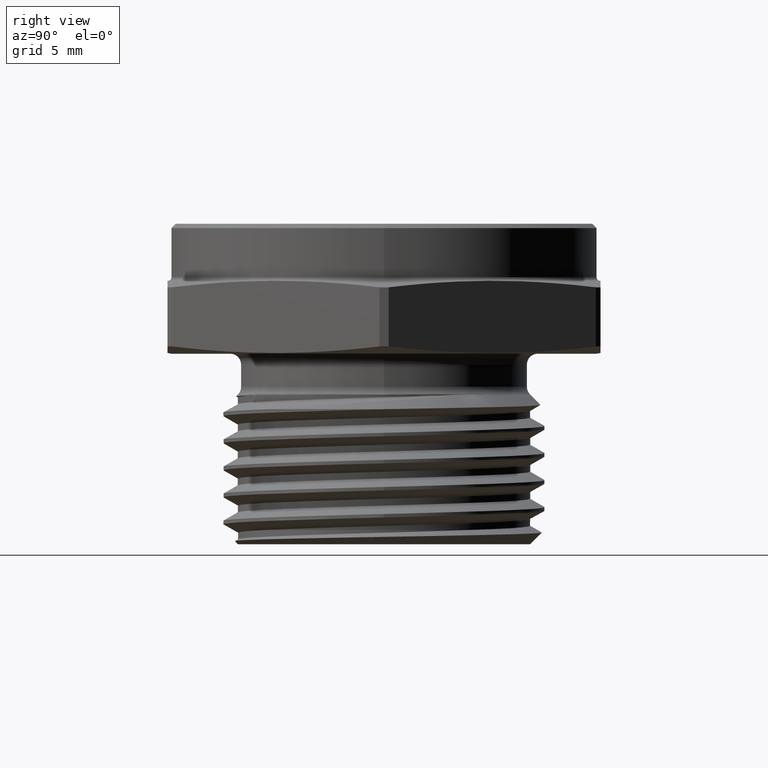
[diagram: clean part render]
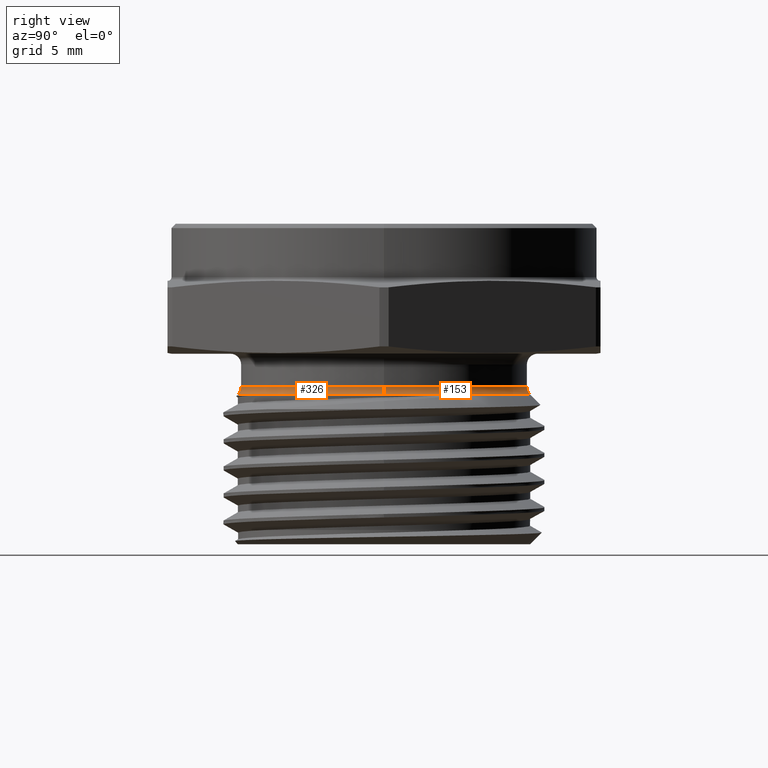
[diagram: same view with one multi-face feature highlighted, each face labeled with its STEP entity id]
A machine part, right view. The highlighted faces form ONE feature: a constant-radius fillet chain: 2 tangent blend faces with common blend radius 0.635 mm. The faces share edges in the B-rep.
Their STEP definitions:
[1] entity #326 (Torus):
#30 = EDGE_LOOP ( 'NONE', ( #2570, #2571, #2572, #2573 ) ) ;
#223 = AXIS2_PLACEMENT_3D ( 'NONE', #1267, #1266, #1269 ) ;
#250 = AXIS2_PLACEMENT_3D ( 'NONE', #444, #445, #446 ) ;
#251 = AXIS2_PLACEMENT_3D ( 'NONE', #448, #449, #450 ) ;
#252 = AXIS2_PLACEMENT_3D ( 'NONE', #451, #452, #453 ) ;
#253 = AXIS2_PLACEMENT_3D ( 'NONE', #455, #456, #457 ) ;
#326 = ADVANCED_FACE ( 'NONE', ( #2140 ), #2143, .F. ) ;
#444 = CARTESIAN_POINT ( 'NONE',  ( 0.0000000000000000000, 0.0000000000000000000, -0.07632233047033618000 ) ) ;
#445 = DIRECTION ( 'NONE',  ( -0.0000000000000000000, -0.0000000000000000000, 1.000000000000000000 ) ) ;
#446 = DIRECTION ( 'NONE',  ( 1.000000000000000000, 0.0000000000000000000, 0.0000000000000000000 ) ) ;
#448 = CARTESIAN_POINT ( 'NONE',  ( -0.3550000000000000400, 4.347496136973104100E-017, -0.07632233047033618000 ) ) ;
#449 = DIRECTION ( 'NONE',  ( 1.224646799147353200E-016, 1.000000000000000000, 0.0000000000000000000 ) ) ;
#450 = DIRECTION ( 'NONE',  ( -1.000000000000000000, 1.224646799147351200E-016, 0.0000000000000000000 ) ) ;
#451 = CARTESIAN_POINT ( 'NONE',  ( 0.0000000000000000000, 0.0000000000000000000, -0.09399999999999990300 ) ) ;
#452 = DIRECTION ( 'NONE',  ( -0.0000000000000000000, -0.0000000000000000000, 1.000000000000000000 ) ) ;
#453 = DIRECTION ( 'NONE',  ( 1.000000000000000000, 0.0000000000000000000, 0.0000000000000000000 ) ) ;
#455 = CARTESIAN_POINT ( 'NONE',  ( 0.3550000000000000400, 0.0000000000000000000, -0.07632233047033618000 ) ) ;
#456 = DIRECTION ( 'NONE',  ( 0.0000000000000000000, -1.000000000000000000, 0.0000000000000000000 ) ) ;
#457 = DIRECTION ( 'NONE',  ( 0.0000000000000000000, 0.0000000000000000000, -1.000000000000000000 ) ) ;
#1266 = DIRECTION ( 'NONE',  ( -0.0000000000000000000, -0.0000000000000000000, 1.000000000000000000 ) ) ;
#1267 = CARTESIAN_POINT ( 'NONE',  ( 0.0000000000000000000, 0.0000000000000000000, -0.07632233047033618000 ) ) ;
#1269 = DIRECTION ( 'NONE',  ( 1.000000000000000000, 0.0000000000000000000, 0.0000000000000000000 ) ) ;
#1525 = CIRCLE ( 'NONE', #250, 0.3300000000000000200 ) ;
#1529 = CIRCLE ( 'NONE', #252, 0.3373223304703363300 ) ;
#1531 = CIRCLE ( 'NONE', #251, 0.02500000000000007400 ) ;
#1533 = CIRCLE ( 'NONE', #253, 0.02500000000000004000 ) ;
#1823 = CARTESIAN_POINT ( 'NONE',  ( 0.3300000000000000200, 0.0000000000000000000, -0.07632233047033618000 ) ) ;
#1829 = CARTESIAN_POINT ( 'NONE',  ( -0.3300000000000000200, 4.086170780050248000E-017, -0.07632233047033618000 ) ) ;
#1842 = CARTESIAN_POINT ( 'NONE',  ( 0.3373223304703363300, 4.340284990873324800E-017, -0.09399999999999990300 ) ) ;
#1853 = CARTESIAN_POINT ( 'NONE',  ( -0.3373223304703363300, 0.0000000000000000000, -0.09399999999999990300 ) ) ;
#2140 = FACE_OUTER_BOUND ( 'NONE', #30, .T. ) ;
#2143 = TOROIDAL_SURFACE ( 'NONE', #223, 0.3550000000000000400, 0.02500000000000004600 ) ;
#2360 = EDGE_CURVE ( 'NONE', #2487, #2481, #1525, .T. ) ;
#2361 = EDGE_CURVE ( 'NONE', #2487, #2958, #1531, .T. ) ;
#2362 = EDGE_CURVE ( 'NONE', #2958, #2672, #1529, .T. ) ;
#2363 = EDGE_CURVE ( 'NONE', #2481, #2672, #1533, .T. ) ;
#2481 = VERTEX_POINT ( 'NONE', #1823 ) ;
#2487 = VERTEX_POINT ( 'NONE', #1829 ) ;
#2570 = ORIENTED_EDGE ( 'NONE', *, *, #2360, .F. ) ;
#2571 = ORIENTED_EDGE ( 'NONE', *, *, #2361, .T. ) ;
#2572 = ORIENTED_EDGE ( 'NONE', *, *, #2362, .T. ) ;
#2573 = ORIENTED_EDGE ( 'NONE', *, *, #2363, .F. ) ;
#2672 = VERTEX_POINT ( 'NONE', #1842 ) ;
#2958 = VERTEX_POINT ( 'NONE', #1853 ) ;
[2] entity #153 (Torus):
#153 = ADVANCED_FACE ( 'NONE', ( #2610 ), #2609, .F. ) ;
#191 = AXIS2_PLACEMENT_3D ( 'NONE', #2923, #2924, #2921 ) ;
#248 = AXIS2_PLACEMENT_3D ( 'NONE', #438, #439, #440 ) ;
#251 = AXIS2_PLACEMENT_3D ( 'NONE', #448, #449, #450 ) ;
#253 = AXIS2_PLACEMENT_3D ( 'NONE', #455, #456, #457 ) ;
#254 = AXIS2_PLACEMENT_3D ( 'NONE', #460, #461, #462 ) ;
#438 = CARTESIAN_POINT ( 'NONE',  ( 0.0000000000000000000, 0.0000000000000000000, -0.07632233047033618000 ) ) ;
#439 = DIRECTION ( 'NONE',  ( -0.0000000000000000000, -0.0000000000000000000, 1.000000000000000000 ) ) ;
#440 = DIRECTION ( 'NONE',  ( 1.000000000000000000, 0.0000000000000000000, 0.0000000000000000000 ) ) ;
#448 = CARTESIAN_POINT ( 'NONE',  ( -0.3550000000000000400, 4.347496136973104100E-017, -0.07632233047033618000 ) ) ;
#449 = DIRECTION ( 'NONE',  ( 1.224646799147353200E-016, 1.000000000000000000, 0.0000000000000000000 ) ) ;
#450 = DIRECTION ( 'NONE',  ( -1.000000000000000000, 1.224646799147351200E-016, 0.0000000000000000000 ) ) ;
#455 = CARTESIAN_POINT ( 'NONE',  ( 0.3550000000000000400, 0.0000000000000000000, -0.07632233047033618000 ) ) ;
#456 = DIRECTION ( 'NONE',  ( 0.0000000000000000000, -1.000000000000000000, 0.0000000000000000000 ) ) ;
#457 = DIRECTION ( 'NONE',  ( 0.0000000000000000000, 0.0000000000000000000, -1.000000000000000000 ) ) ;
#460 = CARTESIAN_POINT ( 'NONE',  ( 0.0000000000000000000, 0.0000000000000000000, -0.09399999999999990300 ) ) ;
#461 = DIRECTION ( 'NONE',  ( -0.0000000000000000000, -0.0000000000000000000, 1.000000000000000000 ) ) ;
#462 = DIRECTION ( 'NONE',  ( 1.000000000000000000, 0.0000000000000000000, 0.0000000000000000000 ) ) ;
#1520 = CIRCLE ( 'NONE', #248, 0.3300000000000000200 ) ;
#1531 = CIRCLE ( 'NONE', #251, 0.02500000000000007400 ) ;
#1532 = CIRCLE ( 'NONE', #254, 0.3373223304703363300 ) ;
#1533 = CIRCLE ( 'NONE', #253, 0.02500000000000004000 ) ;
#1823 = CARTESIAN_POINT ( 'NONE',  ( 0.3300000000000000200, 0.0000000000000000000, -0.07632233047033618000 ) ) ;
#1829 = CARTESIAN_POINT ( 'NONE',  ( -0.3300000000000000200, 4.086170780050248000E-017, -0.07632233047033618000 ) ) ;
#1842 = CARTESIAN_POINT ( 'NONE',  ( 0.3373223304703363300, 4.340284990873324800E-017, -0.09399999999999990300 ) ) ;
#1853 = CARTESIAN_POINT ( 'NONE',  ( -0.3373223304703363300, 0.0000000000000000000, -0.09399999999999990300 ) ) ;
#2262 = ORIENTED_EDGE ( 'NONE', *, *, #2361, .F. ) ;
#2263 = ORIENTED_EDGE ( 'NONE', *, *, #2356, .F. ) ;
#2264 = ORIENTED_EDGE ( 'NONE', *, *, #2363, .T. ) ;
#2265 = ORIENTED_EDGE ( 'NONE', *, *, #2364, .T. ) ;
#2311 = EDGE_LOOP ( 'NONE', ( #2262, #2263, #2264, #2265 ) ) ;
#2356 = EDGE_CURVE ( 'NONE', #2481, #2487, #1520, .T. ) ;
#2361 = EDGE_CURVE ( 'NONE', #2487, #2958, #1531, .T. ) ;
#2363 = EDGE_CURVE ( 'NONE', #2481, #2672, #1533, .T. ) ;
#2364 = EDGE_CURVE ( 'NONE', #2672, #2958, #1532, .T. ) ;
#2481 = VERTEX_POINT ( 'NONE', #1823 ) ;
#2487 = VERTEX_POINT ( 'NONE', #1829 ) ;
#2609 = TOROIDAL_SURFACE ( 'NONE', #191, 0.3550000000000000400, 0.02500000000000004600 ) ;
#2610 = FACE_OUTER_BOUND ( 'NONE', #2311, .T. ) ;
#2672 = VERTEX_POINT ( 'NONE', #1842 ) ;
#2921 = DIRECTION ( 'NONE',  ( 1.000000000000000000, 0.0000000000000000000, 0.0000000000000000000 ) ) ;
#2923 = CARTESIAN_POINT ( 'NONE',  ( 0.0000000000000000000, 0.0000000000000000000, -0.07632233047033618000 ) ) ;
#2924 = DIRECTION ( 'NONE',  ( -0.0000000000000000000, -0.0000000000000000000, 1.000000000000000000 ) ) ;
#2958 = VERTEX_POINT ( 'NONE', #1853 ) ;